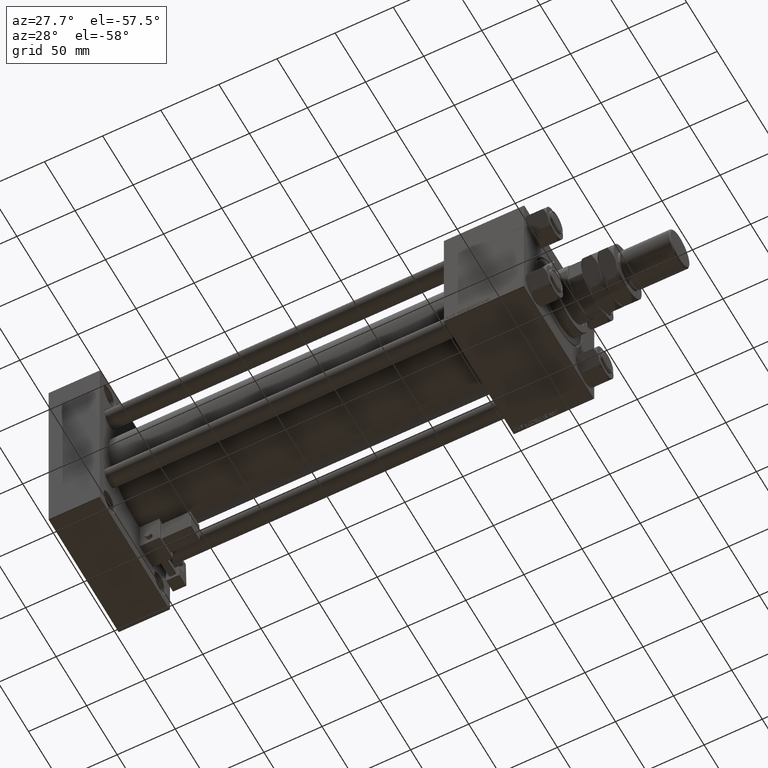
[diagram: clean part render]
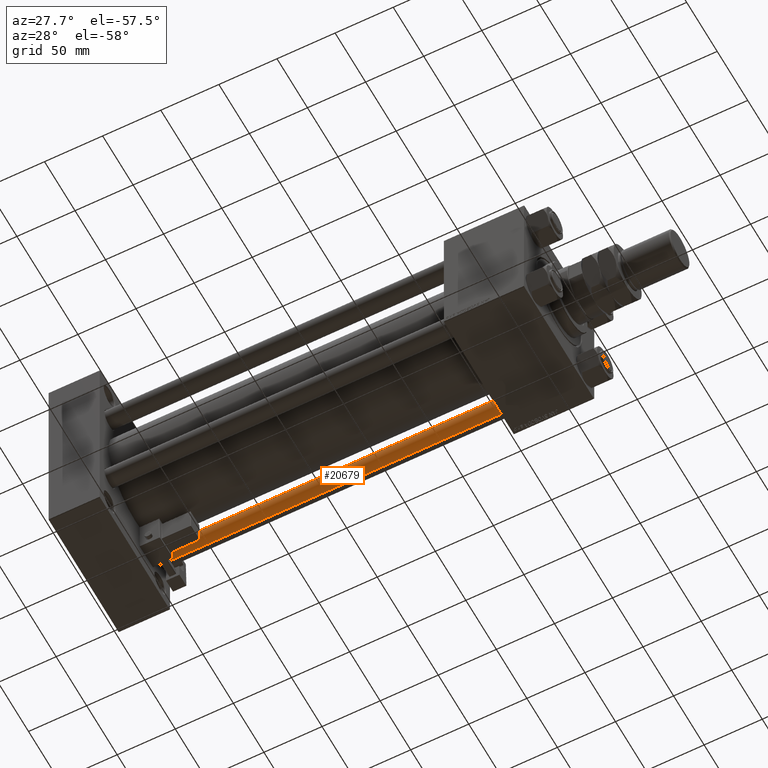
[diagram: same view with one face highlighted and labeled with its STEP entity id]
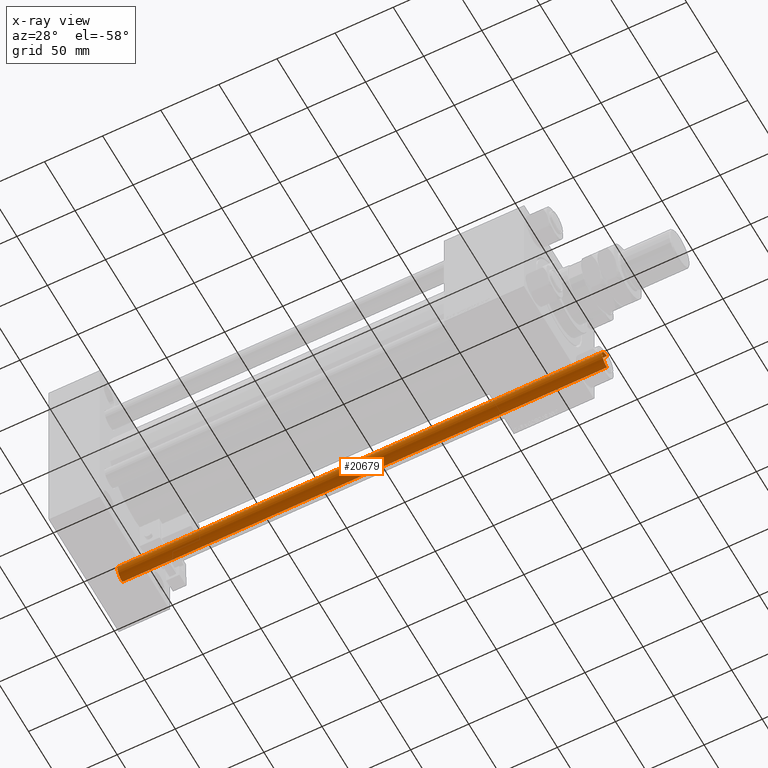
[diagram: x-ray of the same camera — body ghosted, the highlighted face saturated]
A machine part, auxiliary view. The second image highlights one B-rep face of the part: STEP entity #20679.
The next image is the same camera in x-ray: the body ghosted, the highlighted face saturated — about 0% of this face is hidden behind the body in this view.
In plain terms, the highlighted cylindrical surface (edge-blend (fillet) strip) has radius 8 mm, axis along (-1, 0, 0).
Its self-contained STEP definition (entity closure, byte-faithful):
#199 = VERTEX_POINT ( 'NONE', #37583 ) ;
#3142 = CYLINDRICAL_SURFACE ( 'NONE', #27626, 8.000000000000000000 ) ;
#4177 = VERTEX_POINT ( 'NONE', #13983 ) ;
#6391 = VERTEX_POINT ( 'NONE', #55018 ) ;
#7114 = CARTESIAN_POINT ( 'NONE',  ( -8.000000000000000000, 0.000000000000000000, 418.0000000000000000 ) ) ;
#8989 = ORIENTED_EDGE ( 'NONE', *, *, #33779, .F. ) ;
#10093 = EDGE_CURVE ( 'NONE', #55538, #199, #12468, .T. ) ;
#12468 = CIRCLE ( 'NONE', #13369, 8.000000000000000000 ) ;
#13106 = DIRECTION ( 'NONE',  ( -0.000000000000000000, -0.000000000000000000, -1.000000000000000000 ) ) ;
#13348 = DIRECTION ( 'NONE',  ( 0.000000000000000000, 0.000000000000000000, -1.000000000000000000 ) ) ;
#13369 = AXIS2_PLACEMENT_3D ( 'NONE', #35000, #13348, #30733 ) ;
#13693 = ORIENTED_EDGE ( 'NONE', *, *, #47318, .T. ) ;
#13983 = CARTESIAN_POINT ( 'NONE',  ( 8.000000000000000000, 9.797174393178825657E-16, 0.5000000000000004441 ) ) ;
#14768 = LINE ( 'NONE', #40702, #50421 ) ;
#19190 = EDGE_CURVE ( 'NONE', #4177, #6391, #54850, .T. ) ;
#20679 = ADVANCED_FACE ( 'NONE', ( #42191 ), #3142, .T. ) ;
#22071 = DIRECTION ( 'NONE',  ( -0.000000000000000000, -0.000000000000000000, 1.000000000000000000 ) ) ;
#26618 = DIRECTION ( 'NONE',  ( 1.000000000000000000, 0.000000000000000000, 0.000000000000000000 ) ) ;
#26741 = DIRECTION ( 'NONE',  ( -0.000000000000000000, -0.000000000000000000, -1.000000000000000000 ) ) ;
#27176 = VECTOR ( 'NONE', #37055, 1000.000000000000000 ) ;
#27300 = EDGE_LOOP ( 'NONE', ( #40465, #13693, #50947, #8989 ) ) ;
#27626 = AXIS2_PLACEMENT_3D ( 'NONE', #34767, #13106, #35611 ) ;
#30272 = AXIS2_PLACEMENT_3D ( 'NONE', #31469, #22071, #26618 ) ;
#30733 = DIRECTION ( 'NONE',  ( 1.000000000000000000, 0.000000000000000000, 0.000000000000000000 ) ) ;
#31469 = CARTESIAN_POINT ( 'NONE',  ( 0.000000000000000000, 0.000000000000000000, 0.5000000000000004441 ) ) ;
#32738 = CARTESIAN_POINT ( 'NONE',  ( -8.000000000000000000, 0.000000000000000000, 417.5000000000001137 ) ) ;
#33779 = EDGE_CURVE ( 'NONE', #55538, #6391, #54993, .T. ) ;
#34767 = CARTESIAN_POINT ( 'NONE',  ( 0.000000000000000000, 0.000000000000000000, 418.0000000000000000 ) ) ;
#35000 = CARTESIAN_POINT ( 'NONE',  ( 0.000000000000000000, 0.000000000000000000, 417.5000000000001137 ) ) ;
#35611 = DIRECTION ( 'NONE',  ( -1.000000000000000000, 0.000000000000000000, 0.000000000000000000 ) ) ;
#37055 = DIRECTION ( 'NONE',  ( -0.000000000000000000, -0.000000000000000000, -1.000000000000000000 ) ) ;
#37583 = CARTESIAN_POINT ( 'NONE',  ( 8.000000000000000000, 9.797174393178825657E-16, 417.5000000000001137 ) ) ;
#40465 = ORIENTED_EDGE ( 'NONE', *, *, #10093, .T. ) ;
#40702 = CARTESIAN_POINT ( 'NONE',  ( 8.000000000000000000, 9.797174393178825657E-16, 418.0000000000000000 ) ) ;
#42191 = FACE_OUTER_BOUND ( 'NONE', #27300, .T. ) ;
#47318 = EDGE_CURVE ( 'NONE', #199, #4177, #14768, .T. ) ;
#50421 = VECTOR ( 'NONE', #26741, 1000.000000000000000 ) ;
#50947 = ORIENTED_EDGE ( 'NONE', *, *, #19190, .T. ) ;
#54850 = CIRCLE ( 'NONE', #30272, 8.000000000000000000 ) ;
#54993 = LINE ( 'NONE', #7114, #27176 ) ;
#55018 = CARTESIAN_POINT ( 'NONE',  ( -8.000000000000000000, 0.000000000000000000, 0.5000000000000004441 ) ) ;
#55538 = VERTEX_POINT ( 'NONE', #32738 ) ;